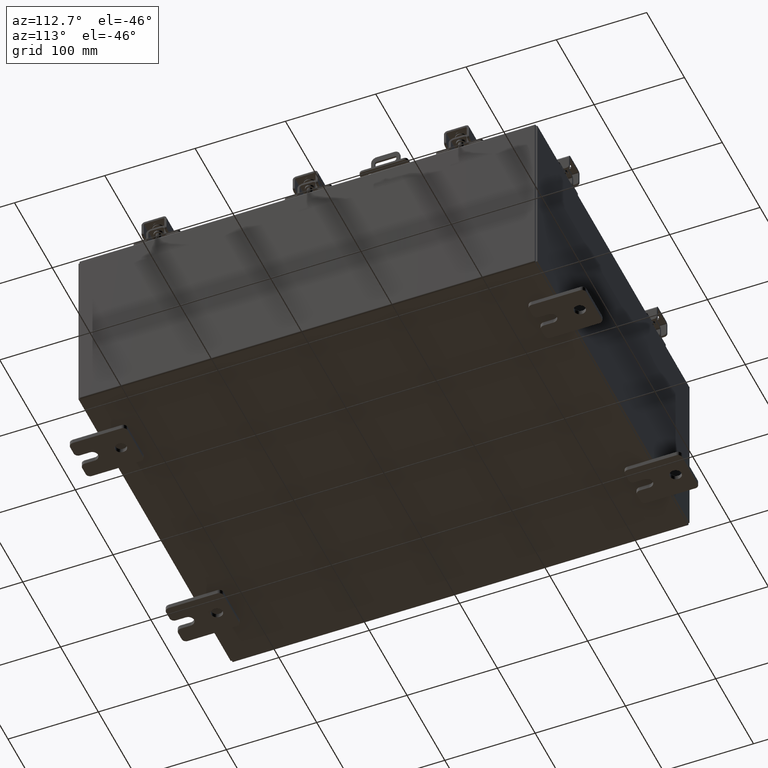
[diagram: clean part render]
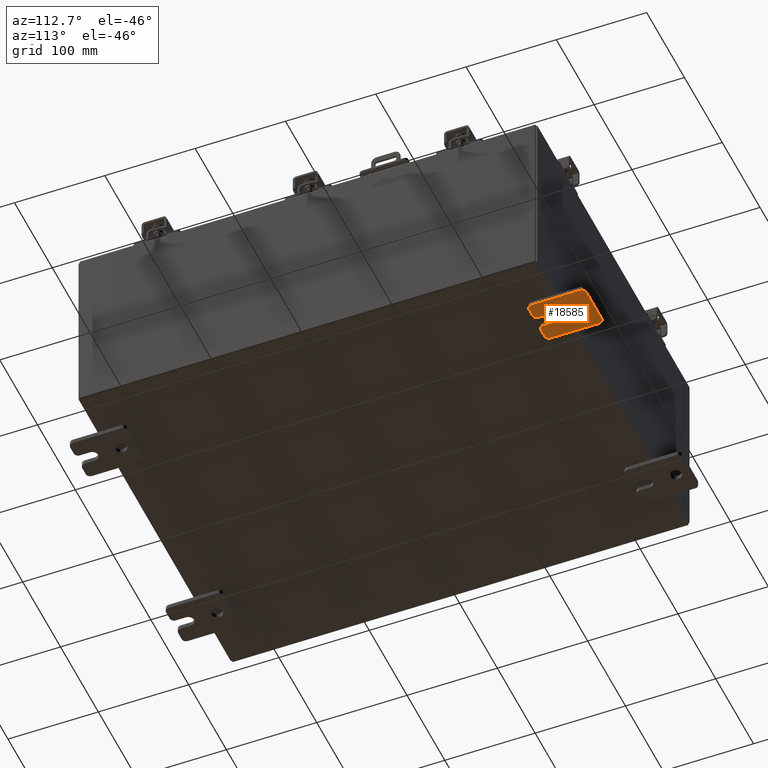
[diagram: same view with one face highlighted and labeled with its STEP entity id]
A machine part, auxiliary view. The second image highlights one B-rep face of the part: STEP entity #18585.
In plain terms, the highlighted planar face has unit normal (0, 0, 1).
Its self-contained STEP definition (entity closure, byte-faithful):
#71 = CIRCLE ( 'NONE', #1892, 0.1900000000000011100 ) ;
#86 = CARTESIAN_POINT ( 'NONE',  ( -0.1879999999999998100, 1.059999999999993600, -1.000000000000010000 ) ) ;
#648 = DIRECTION ( 'NONE',  ( 0.0000000000000000000, 1.000000000000000000, -1.639108796198558100E-015 ) ) ;
#758 = ORIENTED_EDGE ( 'NONE', *, *, #18259, .T. ) ;
#796 = CARTESIAN_POINT ( 'NONE',  ( -0.1879999999999998100, -1.060000000000004500, -0.8100000000000047200 ) ) ;
#1040 = CARTESIAN_POINT ( 'NONE',  ( -0.1879999999999998100, -1.060000000000002300, 0.4400000000000018900 ) ) ;
#1081 = VERTEX_POINT ( 'NONE', #2823 ) ;
#1120 = CARTESIAN_POINT ( 'NONE',  ( -0.1880000000000005000, -1.060000000000002300, -0.2499999999999998100 ) ) ;
#1171 = DIRECTION ( 'NONE',  ( 0.0000000000000000000, 0.0000000000000000000, -1.000000000000000000 ) ) ;
#1193 = DIRECTION ( 'NONE',  ( 0.0000000000000000000, 0.0000000000000000000, -1.000000000000000000 ) ) ;
#1491 = CARTESIAN_POINT ( 'NONE',  ( -0.1879999999999998100, 1.249999999999993600, -0.8100000000000091600 ) ) ;
#1687 = CARTESIAN_POINT ( 'NONE',  ( -0.1879999999999998100, 1.059999999999995800, 0.8099999999999938400 ) ) ;
#1742 = LINE ( 'NONE', #4209, #15091 ) ;
#1888 = VECTOR ( 'NONE', #648, 39.37007874015748100 ) ;
#1892 = AXIS2_PLACEMENT_3D ( 'NONE', #22028, #11601, #1193 ) ;
#1930 = EDGE_CURVE ( 'NONE', #16520, #6645, #8760, .T. ) ;
#2122 = EDGE_CURVE ( 'NONE', #19822, #19897, #10114, .T. ) ;
#2230 = DIRECTION ( 'NONE',  ( -1.000000000000000000, -0.0000000000000000000, -0.0000000000000000000 ) ) ;
#2451 = CARTESIAN_POINT ( 'NONE',  ( -0.1880000000000002200, -0.6249999999999988900, 0.0000000000000000000 ) ) ;
#2629 = CARTESIAN_POINT ( 'NONE',  ( -0.1879999999999998100, 1.059999999999993600, -0.8100000000000091600 ) ) ;
#2773 = DIRECTION ( 'NONE',  ( 0.0000000000000000000, 0.0000000000000000000, -1.000000000000000000 ) ) ;
#2810 = FACE_OUTER_BOUND ( 'NONE', #15088, .T. ) ;
#2823 = CARTESIAN_POINT ( 'NONE',  ( -0.1879999999999998100, 1.059999999999998100, 0.9999999999999958900 ) ) ;
#2858 = DIRECTION ( 'NONE',  ( 0.0000000000000000000, -1.639108796198553600E-015, -1.000000000000000000 ) ) ;
#3194 = EDGE_CURVE ( 'NONE', #16520, #10626, #15801, .T. ) ;
#3336 = AXIS2_PLACEMENT_3D ( 'NONE', #21999, #11581, #1171 ) ;
#3356 = FACE_BOUND ( 'NONE', #15985, .T. ) ;
#3445 = DIRECTION ( 'NONE',  ( 0.0000000000000000000, 0.0000000000000000000, -1.000000000000000000 ) ) ;
#3472 = CARTESIAN_POINT ( 'NONE',  ( -0.1880000000000006400, -1.250000000000004400, 0.2500000000000008900 ) ) ;
#3649 = CIRCLE ( 'NONE', #3336, 0.2499999999999999200 ) ;
#3945 = AXIS2_PLACEMENT_3D ( 'NONE', #2451, #14611, #4212 ) ;
#4123 = VECTOR ( 'NONE', #2858, 39.37007874015748100 ) ;
#4209 = CARTESIAN_POINT ( 'NONE',  ( -0.1879999999999998100, -1.250000000000002200, 0.9999999999999992200 ) ) ;
#4212 = DIRECTION ( 'NONE',  ( -6.829619984160660000E-016, -1.000000000000000000, 0.0000000000000000000 ) ) ;
#4370 = DIRECTION ( 'NONE',  ( 0.0000000000000000000, 0.0000000000000000000, -1.000000000000000000 ) ) ;
#4527 = VERTEX_POINT ( 'NONE', #5878 ) ;
#4533 = LINE ( 'NONE', #20338, #22489 ) ;
#4882 = ORIENTED_EDGE ( 'NONE', *, *, #12286, .F. ) ;
#5409 = VERTEX_POINT ( 'NONE', #1491 ) ;
#5522 = CARTESIAN_POINT ( 'NONE',  ( -0.1880000000000005000, -1.060000000000002300, 0.2500000000000008900 ) ) ;
#5878 = CARTESIAN_POINT ( 'NONE',  ( -0.1880000000000010300, 0.6249999999999988900, -0.2499999999999999200 ) ) ;
#5963 = DIRECTION ( 'NONE',  ( 0.0000000000000000000, -1.639108796198553600E-015, -1.000000000000000000 ) ) ;
#6181 = EDGE_CURVE ( 'NONE', #10079, #10927, #13453, .T. ) ;
#6204 = DIRECTION ( 'NONE',  ( 0.0000000000000000000, 0.0000000000000000000, -1.000000000000000000 ) ) ;
#6454 = CARTESIAN_POINT ( 'NONE',  ( -0.1880000000000002200, -0.6249999999999988900, 0.2500000000000008900 ) ) ;
#6613 = CARTESIAN_POINT ( 'NONE',  ( -0.1880000000000002200, -0.6249999999999988900, -0.2499999999999998100 ) ) ;
#6645 = VERTEX_POINT ( 'NONE', #8627 ) ;
#6909 = DIRECTION ( 'NONE',  ( 6.556435184794182400E-016, 1.000000000000000000, 0.0000000000000000000 ) ) ;
#6961 = CARTESIAN_POINT ( 'NONE',  ( -0.1880000000000010300, 0.6249999999999988900, 0.2499999999999999200 ) ) ;
#7272 = ORIENTED_EDGE ( 'NONE', *, *, #6181, .F. ) ;
#7369 = AXIS2_PLACEMENT_3D ( 'NONE', #8230, #2230, #6204 ) ;
#7402 = VERTEX_POINT ( 'NONE', #12397 ) ;
#7610 = AXIS2_PLACEMENT_3D ( 'NONE', #19777, #9337, #21521 ) ;
#7793 = EDGE_CURVE ( 'NONE', #20177, #4527, #19372, .T. ) ;
#7922 = VECTOR ( 'NONE', #20533, 39.37007874015748100 ) ;
#8230 = CARTESIAN_POINT ( 'NONE',  ( -0.1879999999999998100, -1.060000000000002300, 0.8099999999999981700 ) ) ;
#8579 = ORIENTED_EDGE ( 'NONE', *, *, #19904, .F. ) ;
#8627 = CARTESIAN_POINT ( 'NONE',  ( -0.1879999999999998100, -1.250000000000004400, -0.8100000000000047200 ) ) ;
#8727 = ORIENTED_EDGE ( 'NONE', *, *, #19936, .T. ) ;
#8730 = VECTOR ( 'NONE', #9532, 39.37007874015748100 ) ;
#8743 = AXIS2_PLACEMENT_3D ( 'NONE', #14146, #21161, #10728 ) ;
#8760 = CIRCLE ( 'NONE', #11301, 0.1900000000000011100 ) ;
#8900 = CIRCLE ( 'NONE', #3945, 0.2499999999999999200 ) ;
#8908 = CARTESIAN_POINT ( 'NONE',  ( -0.1879999999999998100, -1.250000000000006700, -1.000000000000006900 ) ) ;
#9315 = EDGE_CURVE ( 'NONE', #21876, #19945, #13084, .T. ) ;
#9337 = DIRECTION ( 'NONE',  ( 1.000000000000000000, 0.0000000000000000000, -5.163192708025532000E-017 ) ) ;
#9508 = ORIENTED_EDGE ( 'NONE', *, *, #2122, .T. ) ;
#9532 = DIRECTION ( 'NONE',  ( 0.0000000000000000000, -1.000000000000000000, 1.639108796198558100E-015 ) ) ;
#10079 = VERTEX_POINT ( 'NONE', #5522 ) ;
#10114 = CIRCLE ( 'NONE', #7369, 0.1900000000000011100 ) ;
#10626 = VERTEX_POINT ( 'NONE', #86 ) ;
#10728 = DIRECTION ( 'NONE',  ( 0.0000000000000000000, 0.0000000000000000000, -1.000000000000000000 ) ) ;
#10927 = VERTEX_POINT ( 'NONE', #6454 ) ;
#10934 = ORIENTED_EDGE ( 'NONE', *, *, #7793, .T. ) ;
#11301 = AXIS2_PLACEMENT_3D ( 'NONE', #796, #15083, #18200 ) ;
#11452 = CARTESIAN_POINT ( 'NONE',  ( -0.1879999999999998100, -1.060000000000002300, 0.9999999999999992200 ) ) ;
#11581 = DIRECTION ( 'NONE',  ( 1.000000000000000000, 0.0000000000000000000, -5.163192708025532000E-017 ) ) ;
#11601 = DIRECTION ( 'NONE',  ( -1.000000000000000000, -0.0000000000000000000, -0.0000000000000000000 ) ) ;
#11783 = AXIS2_PLACEMENT_3D ( 'NONE', #1687, #13869, #3445 ) ;
#11863 = CIRCLE ( 'NONE', #16893, 0.1900000000000011100 ) ;
#12141 = CIRCLE ( 'NONE', #15477, 0.1900000000000011400 ) ;
#12286 = EDGE_CURVE ( 'NONE', #10927, #21876, #8900, .T. ) ;
#12290 = ORIENTED_EDGE ( 'NONE', *, *, #3194, .F. ) ;
#12397 = CARTESIAN_POINT ( 'NONE',  ( -0.1879999999999998100, 1.249999999999997800, 0.8099999999999938400 ) ) ;
#12465 = ORIENTED_EDGE ( 'NONE', *, *, #14072, .T. ) ;
#13084 = LINE ( 'NONE', #6613, #7922 ) ;
#13193 = DIRECTION ( 'NONE',  ( -1.000000000000000000, -0.0000000000000000000, -0.0000000000000000000 ) ) ;
#13273 = CARTESIAN_POINT ( 'NONE',  ( -0.1879999999999998100, -1.250000000000002200, 0.9999999999999992200 ) ) ;
#13453 = LINE ( 'NONE', #3472, #22182 ) ;
#13748 = EDGE_CURVE ( 'NONE', #5409, #10626, #11863, .T. ) ;
#13869 = DIRECTION ( 'NONE',  ( -1.000000000000000000, -0.0000000000000000000, -0.0000000000000000000 ) ) ;
#13879 = EDGE_CURVE ( 'NONE', #5409, #7402, #4533, .T. ) ;
#14072 = EDGE_CURVE ( 'NONE', #1081, #7402, #16777, .T. ) ;
#14146 = CARTESIAN_POINT ( 'NONE',  ( -0.1879999999999998100, 0.0000000000000000000, 0.0000000000000000000 ) ) ;
#14440 = VERTEX_POINT ( 'NONE', #16527 ) ;
#14611 = DIRECTION ( 'NONE',  ( -1.000000000000000000, 6.523827964459549700E-016, 5.163192708025532000E-017 ) ) ;
#14788 = DIRECTION ( 'NONE',  ( -1.000000000000000000, -0.0000000000000000000, -0.0000000000000000000 ) ) ;
#15083 = DIRECTION ( 'NONE',  ( -1.000000000000000000, -0.0000000000000000000, -0.0000000000000000000 ) ) ;
#15088 = EDGE_LOOP ( 'NONE', ( #8579, #9508, #17656, #12465, #15495, #20291, #12290, #22196, #17283, #8727, #16859, #4882, #7272, #15947 ) ) ;
#15091 = VECTOR ( 'NONE', #5963, 39.37007874015748100 ) ;
#15169 = DIRECTION ( 'NONE',  ( 0.0000000000000000000, 1.639108796198553600E-015, 1.000000000000000000 ) ) ;
#15477 = AXIS2_PLACEMENT_3D ( 'NONE', #1040, #13193, #2773 ) ;
#15495 = ORIENTED_EDGE ( 'NONE', *, *, #13879, .F. ) ;
#15612 = EDGE_CURVE ( 'NONE', #10079, #14440, #12141, .T. ) ;
#15801 = LINE ( 'NONE', #8908, #1888 ) ;
#15947 = ORIENTED_EDGE ( 'NONE', *, *, #15612, .T. ) ;
#15985 = EDGE_LOOP ( 'NONE', ( #758, #10934 ) ) ;
#16520 = VERTEX_POINT ( 'NONE', #20941 ) ;
#16527 = CARTESIAN_POINT ( 'NONE',  ( -0.1879999999999998100, -1.250000000000002200, 0.4400000000000018900 ) ) ;
#16645 = CARTESIAN_POINT ( 'NONE',  ( -0.1880000000000002200, -0.6249999999999988900, -0.2499999999999998100 ) ) ;
#16777 = CIRCLE ( 'NONE', #11783, 0.1900000000000011100 ) ;
#16859 = ORIENTED_EDGE ( 'NONE', *, *, #9315, .F. ) ;
#16893 = AXIS2_PLACEMENT_3D ( 'NONE', #2629, #14788, #4370 ) ;
#17283 = ORIENTED_EDGE ( 'NONE', *, *, #18139, .F. ) ;
#17445 = LINE ( 'NONE', #19959, #8730 ) ;
#17656 = ORIENTED_EDGE ( 'NONE', *, *, #20467, .F. ) ;
#18139 = EDGE_CURVE ( 'NONE', #18885, #6645, #1742, .T. ) ;
#18200 = DIRECTION ( 'NONE',  ( 0.0000000000000000000, 0.0000000000000000000, -1.000000000000000000 ) ) ;
#18259 = EDGE_CURVE ( 'NONE', #4527, #20177, #3649, .T. ) ;
#18302 = CARTESIAN_POINT ( 'NONE',  ( -0.1879999999999998100, -1.250000000000002200, 0.8099999999999981700 ) ) ;
#18585 = ADVANCED_FACE ( 'NONE', ( #3356, #2810 ), #19401, .F. ) ;
#18885 = VERTEX_POINT ( 'NONE', #21971 ) ;
#19372 = CIRCLE ( 'NONE', #7610, 0.2499999999999999200 ) ;
#19401 = PLANE ( 'NONE',  #8743 ) ;
#19777 = CARTESIAN_POINT ( 'NONE',  ( -0.1880000000000010300, 0.6249999999999988900, 0.0000000000000000000 ) ) ;
#19822 = VERTEX_POINT ( 'NONE', #18302 ) ;
#19897 = VERTEX_POINT ( 'NONE', #11452 ) ;
#19904 = EDGE_CURVE ( 'NONE', #19822, #14440, #22090, .T. ) ;
#19936 = EDGE_CURVE ( 'NONE', #18885, #19945, #71, .T. ) ;
#19945 = VERTEX_POINT ( 'NONE', #1120 ) ;
#19959 = CARTESIAN_POINT ( 'NONE',  ( -0.1879999999999998100, 1.249999999999997800, 0.9999999999999947800 ) ) ;
#20177 = VERTEX_POINT ( 'NONE', #6961 ) ;
#20291 = ORIENTED_EDGE ( 'NONE', *, *, #13748, .T. ) ;
#20338 = CARTESIAN_POINT ( 'NONE',  ( -0.1879999999999998100, 1.249999999999993600, -1.000000000000010000 ) ) ;
#20467 = EDGE_CURVE ( 'NONE', #1081, #19897, #17445, .T. ) ;
#20533 = DIRECTION ( 'NONE',  ( -6.556435184794182400E-016, -1.000000000000000000, -1.639108796198545600E-016 ) ) ;
#20941 = CARTESIAN_POINT ( 'NONE',  ( -0.1879999999999998100, -1.060000000000004500, -1.000000000000006900 ) ) ;
#21161 = DIRECTION ( 'NONE',  ( 1.000000000000000000, 0.0000000000000000000, 0.0000000000000000000 ) ) ;
#21521 = DIRECTION ( 'NONE',  ( 0.0000000000000000000, 0.0000000000000000000, -1.000000000000000000 ) ) ;
#21876 = VERTEX_POINT ( 'NONE', #16645 ) ;
#21971 = CARTESIAN_POINT ( 'NONE',  ( -0.1879999999999998100, -1.250000000000004400, -0.4399999999999996700 ) ) ;
#21999 = CARTESIAN_POINT ( 'NONE',  ( -0.1880000000000010300, 0.6249999999999988900, 0.0000000000000000000 ) ) ;
#22028 = CARTESIAN_POINT ( 'NONE',  ( -0.1879999999999998100, -1.060000000000002300, -0.4400000000000007800 ) ) ;
#22090 = LINE ( 'NONE', #13273, #4123 ) ;
#22182 = VECTOR ( 'NONE', #6909, 39.37007874015748100 ) ;
#22196 = ORIENTED_EDGE ( 'NONE', *, *, #1930, .T. ) ;
#22489 = VECTOR ( 'NONE', #15169, 39.37007874015748100 ) ;